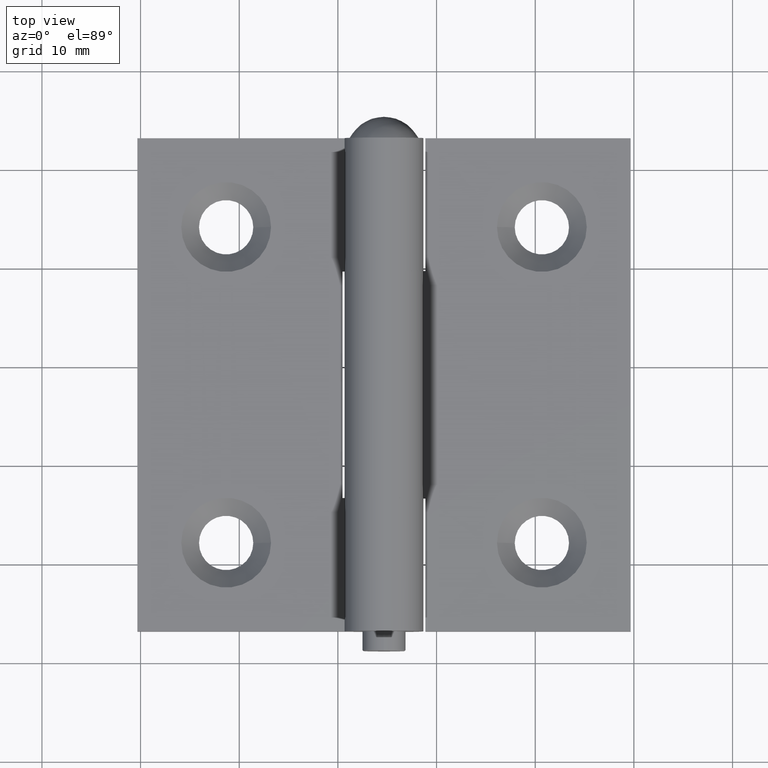
[diagram: clean part render]
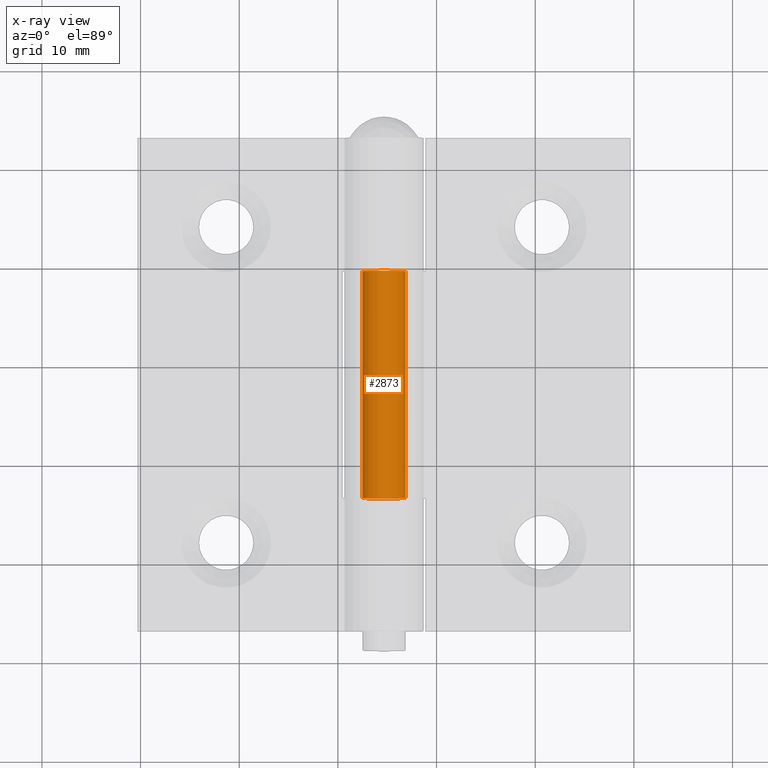
[diagram: x-ray — body ghosted, one internal face saturated and labeled with its STEP entity id]
A machine part, top view, then the same camera in x-ray: the body is ghosted and one INTERNAL B-rep face — a face not visible from any outside direction — is saturated and labeled: STEP entity #2873.
In plain terms, the highlighted cylindrical surface (edge-blend (fillet) strip) has radius 2.2 mm, axis along (0, 1, -0).
Its self-contained STEP definition (entity closure, byte-faithful):
#422 = CARTESIAN_POINT ( 'NONE',  ( -2.193803774269702522, -11.50000000000000355, -0.1649999999999996192 ) ) ;
#424 = FACE_OUTER_BOUND ( 'NONE', #9754, .T. ) ;
#528 = CARTESIAN_POINT ( 'NONE',  ( -2.193803774269702522, 25.00000000000000000, -0.1649999999999996192 ) ) ;
#704 = CIRCLE ( 'NONE', #9181, 2.199999999999997957 ) ;
#1559 = CIRCLE ( 'NONE', #10721, 2.199999999999997957 ) ;
#1726 = DIRECTION ( 'NONE',  ( -0.000000000000000000, -1.000000000000000000, -0.000000000000000000 ) ) ;
#1762 = DIRECTION ( 'NONE',  ( -0.000000000000000000, -1.000000000000000000, -0.000000000000000000 ) ) ;
#1858 = EDGE_CURVE ( 'NONE', #3213, #9336, #6610, .T. ) ;
#2006 = VECTOR ( 'NONE', #3817, 1000.000000000000000 ) ;
#2873 = ADVANCED_FACE ( 'NONE', ( #424 ), #3704, .F. ) ;
#3141 = EDGE_CURVE ( 'NONE', #3213, #5938, #704, .T. ) ;
#3213 = VERTEX_POINT ( 'NONE', #11225 ) ;
#3654 = CARTESIAN_POINT ( 'NONE',  ( -1.593103448275860368, 25.00000000000000000, -1.517241379310343641 ) ) ;
#3704 = CYLINDRICAL_SURFACE ( 'NONE', #6584, 2.199999999999997957 ) ;
#3817 = DIRECTION ( 'NONE',  ( -0.000000000000000000, -1.000000000000000000, -0.000000000000000000 ) ) ;
#3818 = EDGE_CURVE ( 'NONE', #9336, #11109, #1559, .T. ) ;
#4155 = DIRECTION ( 'NONE',  ( -0.000000000000000000, -1.000000000000000000, -0.000000000000000000 ) ) ;
#4385 = CARTESIAN_POINT ( 'NONE',  ( -2.193803774269702522, 11.50000000000000000, -0.1649999999999996192 ) ) ;
#4409 = CARTESIAN_POINT ( 'NONE',  ( 0.000000000000000000, 25.00000000000000000, 0.000000000000000000 ) ) ;
#4664 = ORIENTED_EDGE ( 'NONE', *, *, #3141, .F. ) ;
#5695 = CARTESIAN_POINT ( 'NONE',  ( 0.000000000000000000, 11.50000000000000000, 0.000000000000000000 ) ) ;
#5938 = VERTEX_POINT ( 'NONE', #4385 ) ;
#6326 = ORIENTED_EDGE ( 'NONE', *, *, #3818, .T. ) ;
#6394 = EDGE_CURVE ( 'NONE', #5938, #11109, #7575, .T. ) ;
#6584 = AXIS2_PLACEMENT_3D ( 'NONE', #4409, #1762, #11729 ) ;
#6610 = LINE ( 'NONE', #3654, #2006 ) ;
#6988 = DIRECTION ( 'NONE',  ( -0.000000000000000000, -1.000000000000000000, -0.000000000000000000 ) ) ;
#7051 = DIRECTION ( 'NONE',  ( 0.000000000000000000, 0.000000000000000000, 1.000000000000000000 ) ) ;
#7575 = LINE ( 'NONE', #528, #9703 ) ;
#7823 = CARTESIAN_POINT ( 'NONE',  ( 0.000000000000000000, -11.50000000000000355, 0.000000000000000000 ) ) ;
#8115 = ORIENTED_EDGE ( 'NONE', *, *, #1858, .T. ) ;
#8637 = ORIENTED_EDGE ( 'NONE', *, *, #6394, .F. ) ;
#9181 = AXIS2_PLACEMENT_3D ( 'NONE', #5695, #1726, #10180 ) ;
#9336 = VERTEX_POINT ( 'NONE', #11676 ) ;
#9703 = VECTOR ( 'NONE', #6988, 1000.000000000000000 ) ;
#9754 = EDGE_LOOP ( 'NONE', ( #8115, #6326, #8637, #4664 ) ) ;
#10180 = DIRECTION ( 'NONE',  ( 0.000000000000000000, 0.000000000000000000, 1.000000000000000000 ) ) ;
#10721 = AXIS2_PLACEMENT_3D ( 'NONE', #7823, #4155, #7051 ) ;
#11109 = VERTEX_POINT ( 'NONE', #422 ) ;
#11225 = CARTESIAN_POINT ( 'NONE',  ( -1.593103448275860368, 11.50000000000000000, -1.517241379310343641 ) ) ;
#11676 = CARTESIAN_POINT ( 'NONE',  ( -1.593103448275860368, -11.50000000000000355, -1.517241379310343641 ) ) ;
#11729 = DIRECTION ( 'NONE',  ( 0.000000000000000000, 0.000000000000000000, -1.000000000000000000 ) ) ;